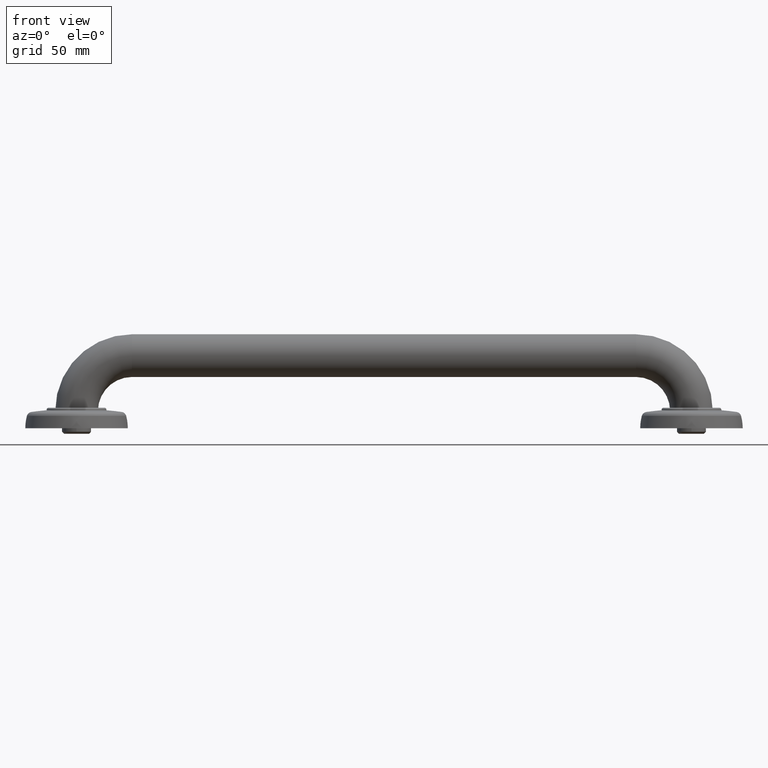
[diagram: clean part render]
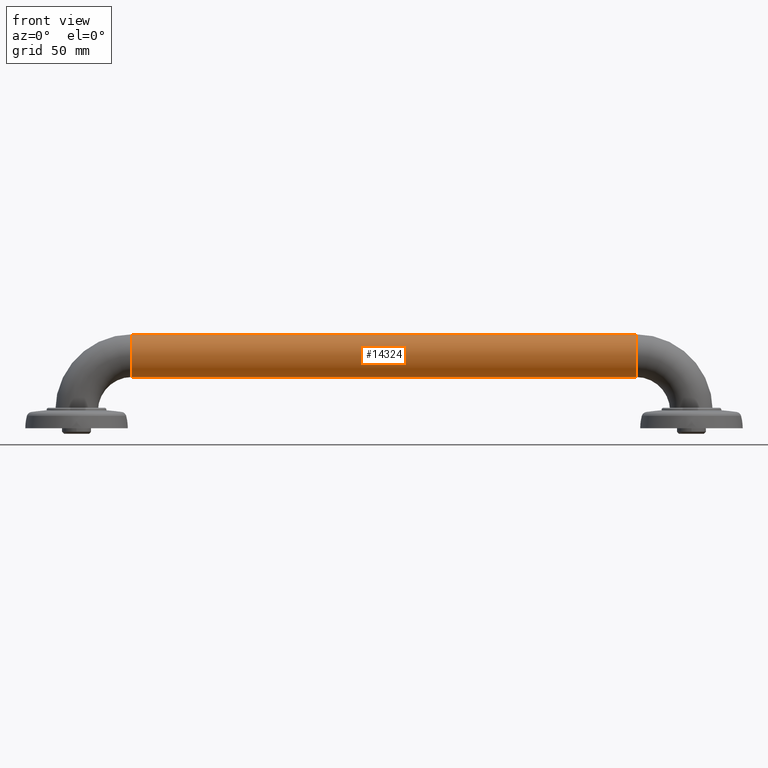
[diagram: same view with one face highlighted and labeled with its STEP entity id]
A machine part, front view. The second image highlights one B-rep face of the part: STEP entity #14324.
In plain terms, the highlighted cylindrical surface (edge-blend (fillet) strip) has radius 15.875 mm, axis along (1, 0, 0).
Its self-contained STEP definition (entity closure, byte-faithful):
#14020=DIRECTION('',(1.E0,0.E0,0.E0));
#14021=VECTOR('',#14020,1.475E1);
#14022=CARTESIAN_POINT('',(-7.375E0,0.E0,-6.25E-1));
#14023=LINE('',#14022,#14021);
#14024=CARTESIAN_POINT('',(-7.375E0,0.E0,0.E0));
#14025=DIRECTION('',(1.E0,0.E0,0.E0));
#14026=DIRECTION('',(0.E0,0.E0,1.E0));
#14027=AXIS2_PLACEMENT_3D('',#14024,#14025,#14026);
#14029=DIRECTION('',(1.E0,0.E0,0.E0));
#14030=VECTOR('',#14029,1.475E1);
#14031=CARTESIAN_POINT('',(-7.375E0,0.E0,6.25E-1));
#14032=LINE('',#14031,#14030);
#14033=CARTESIAN_POINT('',(7.375E0,0.E0,0.E0));
#14034=DIRECTION('',(1.E0,0.E0,0.E0));
#14035=DIRECTION('',(0.E0,0.E0,1.E0));
#14036=AXIS2_PLACEMENT_3D('',#14033,#14034,#14035);
#14191=CARTESIAN_POINT('',(-7.375E0,0.E0,-6.25E-1));
#14192=CARTESIAN_POINT('',(-7.375E0,0.E0,6.25E-1));
#14193=VERTEX_POINT('',#14191);
#14194=VERTEX_POINT('',#14192);
#14199=CARTESIAN_POINT('',(7.375E0,0.E0,-6.25E-1));
#14200=CARTESIAN_POINT('',(7.375E0,0.E0,6.25E-1));
#14201=VERTEX_POINT('',#14199);
#14202=VERTEX_POINT('',#14200);
#14312=CARTESIAN_POINT('',(-7.375E0,0.E0,0.E0));
#14313=DIRECTION('',(1.E0,0.E0,0.E0));
#14314=DIRECTION('',(0.E0,0.E0,-1.E0));
#14315=AXIS2_PLACEMENT_3D('',#14312,#14313,#14314);
#14316=CYLINDRICAL_SURFACE('',#14315,6.25E-1);
#14317=ORIENTED_EDGE('',*,*,#14277,.F.);
#14318=ORIENTED_EDGE('',*,*,#14307,.T.);
#14320=ORIENTED_EDGE('',*,*,#14319,.T.);
#14321=ORIENTED_EDGE('',*,*,#14303,.F.);
#14322=EDGE_LOOP('',(#14317,#14318,#14320,#14321));
#14323=FACE_OUTER_BOUND('',#14322,.F.);
#14324=ADVANCED_FACE('',(#14323),#14316,.T.);
#14028=CIRCLE('',#14027,6.25E-1);
#14037=CIRCLE('',#14036,6.25E-1);
#14277=EDGE_CURVE('',#14194,#14193,#14028,.T.);
#14303=EDGE_CURVE('',#14193,#14201,#14023,.T.);
#14307=EDGE_CURVE('',#14194,#14202,#14032,.T.);
#14319=EDGE_CURVE('',#14202,#14201,#14037,.T.);